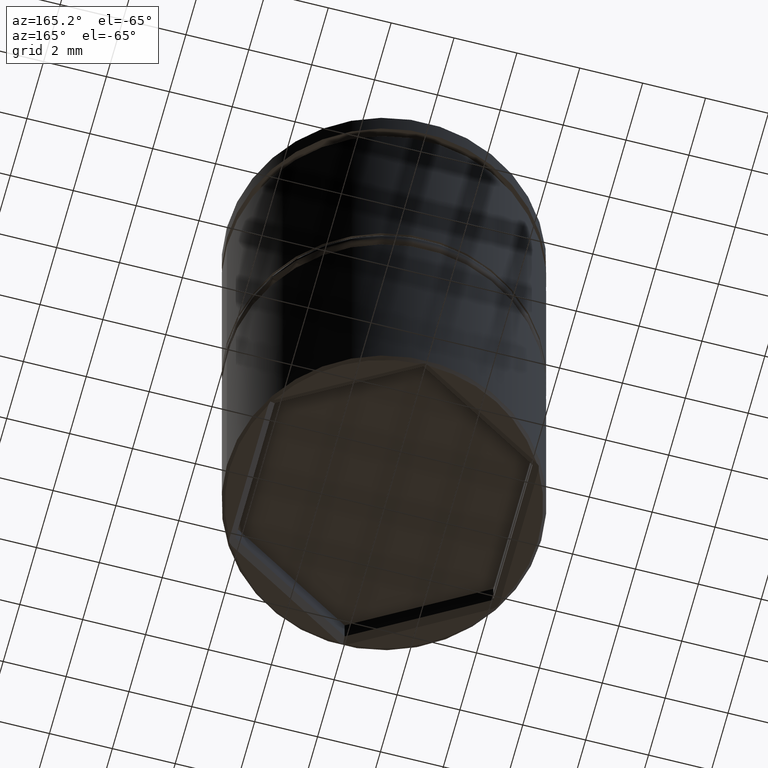
[diagram: clean part render]
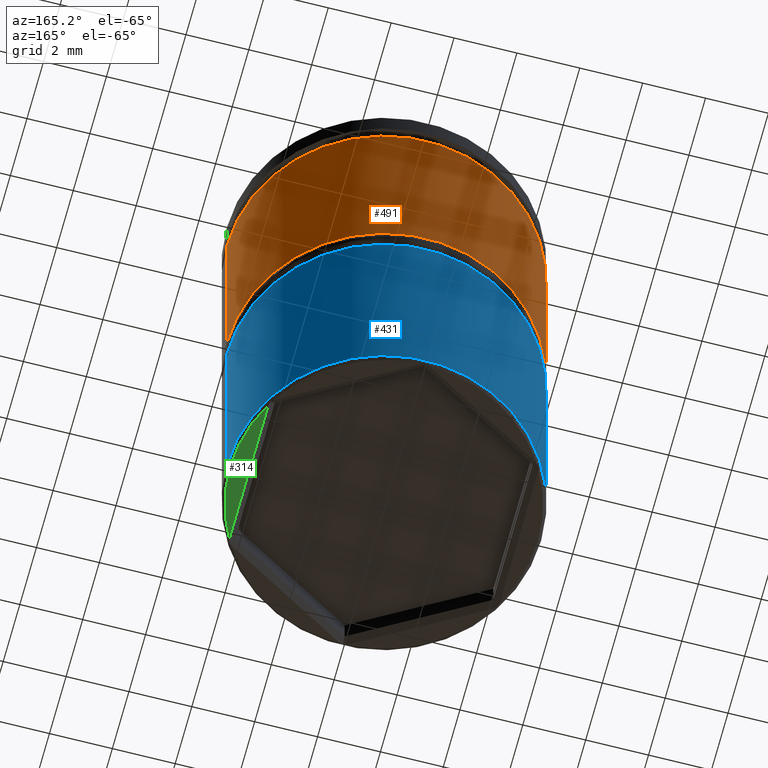
[diagram: same view with three faces highlighted in distinct colors, each labeled with its STEP entity id]
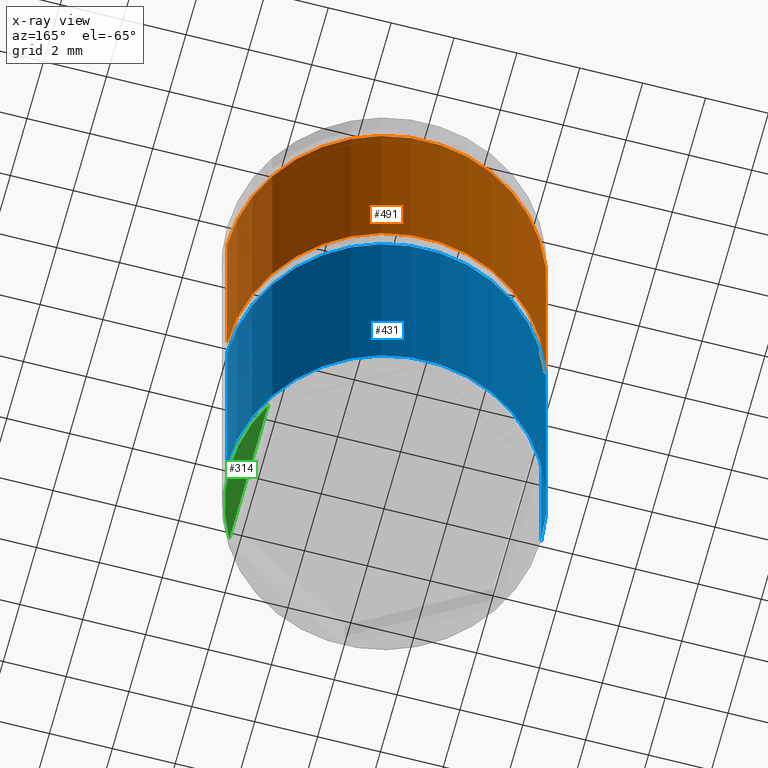
[diagram: x-ray of the same camera — body ghosted, the three highlighted faces saturated]
A machine part, auxiliary view with three faces highlighted in distinct colors.
The next image is the same camera in x-ray (body ghosted, the three faces saturated) — at least one of them is partly hidden behind the body in this view.
Their STEP definitions:

[orange] entity #491 — the highlighted cylindrical surface (partial cylindrical patch) has radius 5 mm, axis along (-0, -0, 1).
#6 = CARTESIAN_POINT ( 'NONE',  ( 5.000000000000000000, 0.000000000000000000, -1.424999999999994049 ) ) ;
#12 = VECTOR ( 'NONE', #433, 1000.000000000000000 ) ;
#93 = DIRECTION ( 'NONE',  ( -0.000000000000000000, -0.000000000000000000, 1.000000000000000000 ) ) ;
#110 = CARTESIAN_POINT ( 'NONE',  ( -5.000000000000000000, 6.123233995736766282E-16, 0.000000000000000000 ) ) ;
#122 = AXIS2_PLACEMENT_3D ( 'NONE', #281, #596, #1350 ) ;
#224 = VERTEX_POINT ( 'NONE', #863 ) ;
#255 = CIRCLE ( 'NONE', #122, 5.000000000000000000 ) ;
#281 = CARTESIAN_POINT ( 'NONE',  ( 0.000000000000000000, 0.000000000000000000, -1.424999999999994049 ) ) ;
#315 = DIRECTION ( 'NONE',  ( -0.000000000000000000, -0.000000000000000000, 1.000000000000000000 ) ) ;
#336 = DIRECTION ( 'NONE',  ( 1.000000000000000000, 0.000000000000000000, 0.000000000000000000 ) ) ;
#337 = CARTESIAN_POINT ( 'NONE',  ( -5.000000000000000000, 6.123233995736766282E-16, -8.500000000000000000 ) ) ;
#368 = AXIS2_PLACEMENT_3D ( 'NONE', #1191, #641, #336 ) ;
#433 = DIRECTION ( 'NONE',  ( -0.000000000000000000, -0.000000000000000000, 1.000000000000000000 ) ) ;
#458 = EDGE_CURVE ( 'NONE', #224, #1363, #515, .T. ) ;
#491 = ADVANCED_FACE ( 'NONE', ( #925 ), #1054, .T. ) ;
#515 = LINE ( 'NONE', #1020, #1164 ) ;
#524 = AXIS2_PLACEMENT_3D ( 'NONE', #947, #93, #716 ) ;
#596 = DIRECTION ( 'NONE',  ( 0.000000000000000000, 0.000000000000000000, -1.000000000000000000 ) ) ;
#641 = DIRECTION ( 'NONE',  ( -0.000000000000000000, -0.000000000000000000, 1.000000000000000000 ) ) ;
#716 = DIRECTION ( 'NONE',  ( 1.000000000000000000, 0.000000000000000000, 0.000000000000000000 ) ) ;
#863 = CARTESIAN_POINT ( 'NONE',  ( 5.000000000000000000, 0.000000000000000000, -8.500000000000000000 ) ) ;
#883 = EDGE_CURVE ( 'NONE', #959, #951, #1277, .T. ) ;
#925 = FACE_OUTER_BOUND ( 'NONE', #1333, .T. ) ;
#947 = CARTESIAN_POINT ( 'NONE',  ( 0.000000000000000000, 0.000000000000000000, 0.000000000000000000 ) ) ;
#951 = VERTEX_POINT ( 'NONE', #1270 ) ;
#959 = VERTEX_POINT ( 'NONE', #337 ) ;
#1020 = CARTESIAN_POINT ( 'NONE',  ( 5.000000000000000000, 0.000000000000000000, 0.000000000000000000 ) ) ;
#1054 = CYLINDRICAL_SURFACE ( 'NONE', #524, 5.000000000000000000 ) ;
#1085 = ORIENTED_EDGE ( 'NONE', *, *, #1380, .T. ) ;
#1145 = ORIENTED_EDGE ( 'NONE', *, *, #458, .F. ) ;
#1164 = VECTOR ( 'NONE', #315, 1000.000000000000000 ) ;
#1191 = CARTESIAN_POINT ( 'NONE',  ( 0.000000000000000000, 0.000000000000000000, -8.500000000000000000 ) ) ;
#1199 = EDGE_CURVE ( 'NONE', #951, #1363, #255, .T. ) ;
#1252 = ORIENTED_EDGE ( 'NONE', *, *, #883, .T. ) ;
#1270 = CARTESIAN_POINT ( 'NONE',  ( -5.000000000000000000, 6.123233995736766282E-16, -1.424999999999994049 ) ) ;
#1277 = LINE ( 'NONE', #110, #12 ) ;
#1306 = CIRCLE ( 'NONE', #368, 5.000000000000000000 ) ;
#1317 = ORIENTED_EDGE ( 'NONE', *, *, #1199, .T. ) ;
#1333 = EDGE_LOOP ( 'NONE', ( #1085, #1252, #1317, #1145 ) ) ;
#1350 = DIRECTION ( 'NONE',  ( 1.000000000000000000, 0.000000000000000000, 0.000000000000000000 ) ) ;
#1363 = VERTEX_POINT ( 'NONE', #6 ) ;
#1380 = EDGE_CURVE ( 'NONE', #224, #959, #1306, .T. ) ;

[blue] entity #431 — the highlighted cylindrical surface (partial cylindrical patch) has radius 5 mm, axis along (-0, -0, 1).
#10 = CARTESIAN_POINT ( 'NONE',  ( -5.000000000000000000, 6.123233995736766282E-16, -9.299999999999998934 ) ) ;
#65 = DIRECTION ( 'NONE',  ( 0.000000000000000000, 0.000000000000000000, -1.000000000000000000 ) ) ;
#69 = VERTEX_POINT ( 'NONE', #578 ) ;
#175 = VERTEX_POINT ( 'NONE', #900 ) ;
#180 = EDGE_CURVE ( 'NONE', #175, #639, #659, .T. ) ;
#182 = DIRECTION ( 'NONE',  ( -0.000000000000000000, -0.000000000000000000, 1.000000000000000000 ) ) ;
#272 = VERTEX_POINT ( 'NONE', #10 ) ;
#290 = LINE ( 'NONE', #688, #812 ) ;
#357 = CARTESIAN_POINT ( 'NONE',  ( 0.000000000000000000, 0.000000000000000000, -17.39999999999999147 ) ) ;
#399 = ORIENTED_EDGE ( 'NONE', *, *, #417, .T. ) ;
#409 = CYLINDRICAL_SURFACE ( 'NONE', #897, 5.000000000000000000 ) ;
#417 = EDGE_CURVE ( 'NONE', #272, #639, #1091, .T. ) ;
#431 = ADVANCED_FACE ( 'NONE', ( #1337 ), #409, .T. ) ;
#446 = CARTESIAN_POINT ( 'NONE',  ( 5.000000000000000000, 0.000000000000000000, -9.299999999999998934 ) ) ;
#456 = CARTESIAN_POINT ( 'NONE',  ( 5.000000000000000000, 0.000000000000000000, 0.000000000000000000 ) ) ;
#494 = CARTESIAN_POINT ( 'NONE',  ( 0.000000000000000000, 0.000000000000000000, -9.299999999999998934 ) ) ;
#513 = ORIENTED_EDGE ( 'NONE', *, *, #180, .F. ) ;
#578 = CARTESIAN_POINT ( 'NONE',  ( -5.000000000000000000, 6.123233995736766282E-16, -17.39999999999999147 ) ) ;
#631 = DIRECTION ( 'NONE',  ( -0.000000000000000000, -0.000000000000000000, 1.000000000000000000 ) ) ;
#639 = VERTEX_POINT ( 'NONE', #446 ) ;
#659 = LINE ( 'NONE', #456, #1188 ) ;
#688 = CARTESIAN_POINT ( 'NONE',  ( -5.000000000000000000, 6.123233995736766282E-16, 0.000000000000000000 ) ) ;
#711 = ORIENTED_EDGE ( 'NONE', *, *, #1215, .T. ) ;
#751 = DIRECTION ( 'NONE',  ( -0.000000000000000000, -0.000000000000000000, 1.000000000000000000 ) ) ;
#778 = EDGE_CURVE ( 'NONE', #175, #69, #1283, .T. ) ;
#812 = VECTOR ( 'NONE', #182, 1000.000000000000000 ) ;
#823 = ORIENTED_EDGE ( 'NONE', *, *, #778, .T. ) ;
#888 = DIRECTION ( 'NONE',  ( -0.000000000000000000, -0.000000000000000000, 1.000000000000000000 ) ) ;
#897 = AXIS2_PLACEMENT_3D ( 'NONE', #1376, #631, #955 ) ;
#900 = CARTESIAN_POINT ( 'NONE',  ( 5.000000000000000000, 0.000000000000000000, -17.39999999999999147 ) ) ;
#921 = EDGE_LOOP ( 'NONE', ( #823, #711, #399, #513 ) ) ;
#955 = DIRECTION ( 'NONE',  ( 1.000000000000000000, 0.000000000000000000, 0.000000000000000000 ) ) ;
#1091 = CIRCLE ( 'NONE', #1189, 5.000000000000000000 ) ;
#1139 = AXIS2_PLACEMENT_3D ( 'NONE', #357, #888, #1312 ) ;
#1188 = VECTOR ( 'NONE', #751, 1000.000000000000000 ) ;
#1189 = AXIS2_PLACEMENT_3D ( 'NONE', #494, #65, #1331 ) ;
#1215 = EDGE_CURVE ( 'NONE', #69, #272, #290, .T. ) ;
#1283 = CIRCLE ( 'NONE', #1139, 5.000000000000000000 ) ;
#1312 = DIRECTION ( 'NONE',  ( -1.000000000000000000, 0.000000000000000000, 0.000000000000000000 ) ) ;
#1331 = DIRECTION ( 'NONE',  ( 1.000000000000000000, 0.000000000000000000, 0.000000000000000000 ) ) ;
#1337 = FACE_OUTER_BOUND ( 'NONE', #921, .T. ) ;
#1376 = CARTESIAN_POINT ( 'NONE',  ( 0.000000000000000000, 0.000000000000000000, 0.000000000000000000 ) ) ;

[green] entity #314 — the highlighted planar face has unit normal (0, 0, -1).
#21 = CARTESIAN_POINT ( 'NONE',  ( 4.299999999999996270, -2.349468024894134199, -17.50000000000000000 ) ) ;
#238 = VERTEX_POINT ( 'NONE', #1300 ) ;
#277 = DIRECTION ( 'NONE',  ( -1.000000000000000000, 0.000000000000000000, 0.000000000000000000 ) ) ;
#303 = ORIENTED_EDGE ( 'NONE', *, *, #338, .T. ) ;
#310 = ORIENTED_EDGE ( 'NONE', *, *, #707, .T. ) ;
#314 = ADVANCED_FACE ( 'NONE', ( #472 ), #814, .T. ) ;
#328 = CARTESIAN_POINT ( 'NONE',  ( 4.899999999999991473, 0.000000000000000000, -17.50000000000000000 ) ) ;
#338 = EDGE_CURVE ( 'NONE', #238, #697, #1049, .T. ) ;
#360 = EDGE_LOOP ( 'NONE', ( #303, #1352, #310 ) ) ;
#366 = AXIS2_PLACEMENT_3D ( 'NONE', #1367, #1067, #957 ) ;
#370 = DIRECTION ( 'NONE',  ( 0.000000000000000000, 0.000000000000000000, -1.000000000000000000 ) ) ;
#388 = CIRCLE ( 'NONE', #366, 4.899999999999991473 ) ;
#434 = AXIS2_PLACEMENT_3D ( 'NONE', #1127, #370, #1239 ) ;
#472 = FACE_OUTER_BOUND ( 'NONE', #360, .T. ) ;
#667 = CARTESIAN_POINT ( 'NONE',  ( 4.299999999999996270, 2.367136103677458969, -17.50000000000000000 ) ) ;
#695 = CARTESIAN_POINT ( 'NONE',  ( 0.000000000000000000, 0.000000000000000000, -17.50000000000000000 ) ) ;
#697 = VERTEX_POINT ( 'NONE', #328 ) ;
#707 = EDGE_CURVE ( 'NONE', #1032, #238, #773, .T. ) ;
#710 = DIRECTION ( 'NONE',  ( 0.000000000000000000, 0.000000000000000000, -1.000000000000000000 ) ) ;
#773 = LINE ( 'NONE', #667, #1280 ) ;
#814 = PLANE ( 'NONE',  #434 ) ;
#924 = EDGE_CURVE ( 'NONE', #697, #1032, #388, .T. ) ;
#957 = DIRECTION ( 'NONE',  ( -1.000000000000000000, 0.000000000000000000, 0.000000000000000000 ) ) ;
#1032 = VERTEX_POINT ( 'NONE', #21 ) ;
#1049 = CIRCLE ( 'NONE', #1163, 4.899999999999991473 ) ;
#1067 = DIRECTION ( 'NONE',  ( 0.000000000000000000, 0.000000000000000000, -1.000000000000000000 ) ) ;
#1083 = DIRECTION ( 'NONE',  ( -0.000000000000000000, 1.000000000000000000, 0.000000000000000000 ) ) ;
#1127 = CARTESIAN_POINT ( 'NONE',  ( 0.000000000000000000, 5.000000000000000000, -17.50000000000000000 ) ) ;
#1163 = AXIS2_PLACEMENT_3D ( 'NONE', #695, #710, #277 ) ;
#1239 = DIRECTION ( 'NONE',  ( -1.000000000000000000, 0.000000000000000000, -0.000000000000000000 ) ) ;
#1280 = VECTOR ( 'NONE', #1083, 1000.000000000000000 ) ;
#1300 = CARTESIAN_POINT ( 'NONE',  ( 4.299999999999996270, 2.349468024894134199, -17.50000000000000000 ) ) ;
#1352 = ORIENTED_EDGE ( 'NONE', *, *, #924, .T. ) ;
#1367 = CARTESIAN_POINT ( 'NONE',  ( 0.000000000000000000, 0.000000000000000000, -17.50000000000000000 ) ) ;